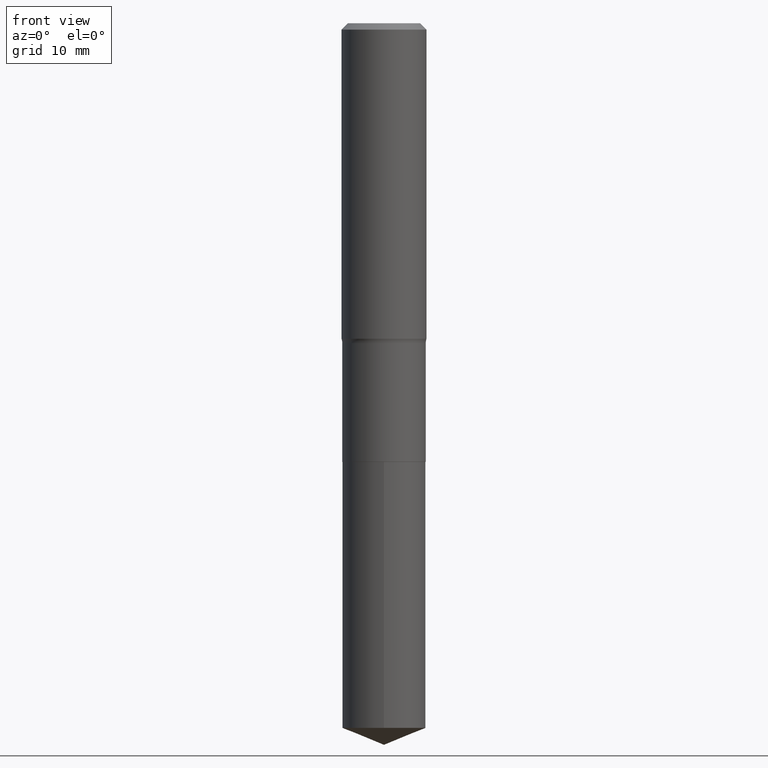
[diagram: clean part render]
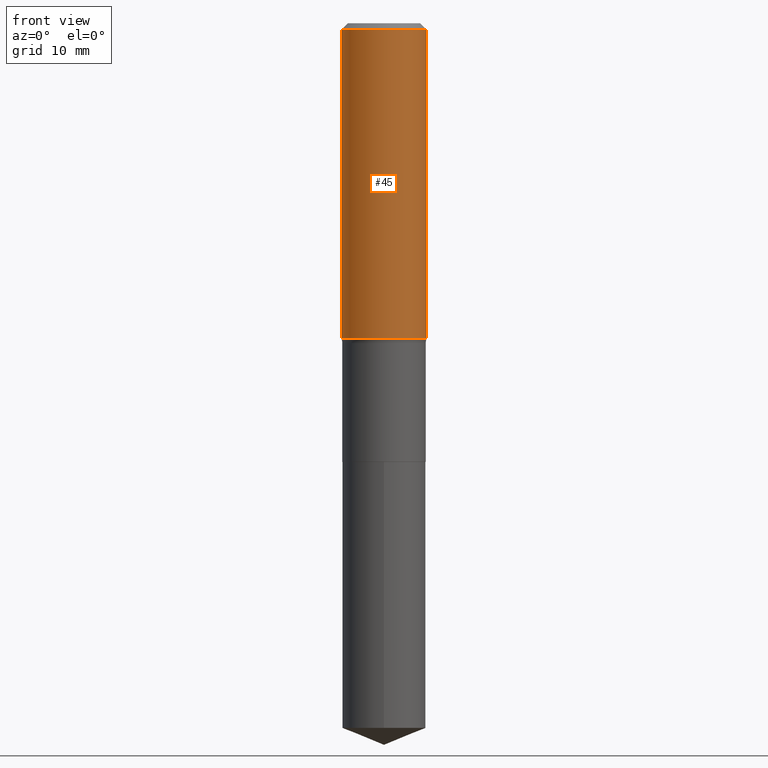
[diagram: same view with one face highlighted and labeled with its STEP entity id]
A machine part, front view. The second image highlights one B-rep face of the part: STEP entity #45.
In plain terms, the highlighted cylindrical surface (partial cylindrical patch) has radius 5.9995 mm, axis along (-0, 0, 1).
Its self-contained STEP definition (entity closure, byte-faithful):
#29 = EDGE_CURVE ( 'NONE', #132, #321, #423, .T. ) ;
#45 = ADVANCED_FACE ( 'NONE', ( #77 ), #184, .T. ) ;
#61 = ORIENTED_EDGE ( 'NONE', *, *, #457, .F. ) ;
#71 = EDGE_CURVE ( 'NONE', #489, #97, #255, .T. ) ;
#77 = FACE_OUTER_BOUND ( 'NONE', #241, .T. ) ;
#97 = VERTEX_POINT ( 'NONE', #383 ) ;
#132 = VERTEX_POINT ( 'NONE', #266 ) ;
#133 = CARTESIAN_POINT ( 'NONE',  ( 4.294841159874141345E-29, -6.131894925451270477E-15, -1.756244507806245192 ) ) ;
#140 = ORIENTED_EDGE ( 'NONE', *, *, #220, .T. ) ;
#148 = DIRECTION ( 'NONE',  ( -2.445468806185136597E-29, 3.491481338843145583E-15, 1.000000000000000000 ) ) ;
#179 = AXIS2_PLACEMENT_3D ( 'NONE', #182, #224, #418 ) ;
#182 = CARTESIAN_POINT ( 'NONE',  ( 0.000000000000000000, 0.000000000000000000, 0.000000000000000000 ) ) ;
#184 = CYLINDRICAL_SURFACE ( 'NONE', #179, 0.2362000000000001321 ) ;
#188 = CARTESIAN_POINT ( 'NONE',  ( 0.2362000000000002431, -7.781270709920767791E-15, -1.756244507806245192 ) ) ;
#200 = CARTESIAN_POINT ( 'NONE',  ( -0.2361999999999999933, -1.449497112777884254E-15, -0.03543000000000021826 ) ) ;
#220 = EDGE_CURVE ( 'NONE', #132, #489, #315, .T. ) ;
#224 = DIRECTION ( 'NONE',  ( -2.445468806185136597E-29, 3.491481338843145583E-15, 1.000000000000000000 ) ) ;
#241 = EDGE_LOOP ( 'NONE', ( #439, #140, #450, #61 ) ) ;
#246 = DIRECTION ( 'NONE',  ( -2.445468806185136597E-29, 3.491481338843145583E-15, 1.000000000000000000 ) ) ;
#251 = DIRECTION ( 'NONE',  ( 1.000000000000000000, -6.982962677686266711E-15, 0.000000000000000000 ) ) ;
#255 = LINE ( 'NONE', #464, #442 ) ;
#266 = CARTESIAN_POINT ( 'NONE',  ( -0.2362000000000002431, -4.453592983585912505E-15, -1.756244507806245192 ) ) ;
#299 = DIRECTION ( 'NONE',  ( -2.445468806185136877E-29, 3.491481338843145188E-15, 1.000000000000000000 ) ) ;
#301 = CARTESIAN_POINT ( 'NONE',  ( 8.664295980313993487E-31, -1.237031838352134079E-16, -0.03543000000000021826 ) ) ;
#315 = CIRCLE ( 'NONE', #385, 0.2362000000000002431 ) ;
#321 = VERTEX_POINT ( 'NONE', #200 ) ;
#358 = AXIS2_PLACEMENT_3D ( 'NONE', #301, #148, #251 ) ;
#376 = VECTOR ( 'NONE', #491, 39.37007874015748143 ) ;
#378 = CARTESIAN_POINT ( 'NONE',  ( -0.2362000000000001321, 1.678301941865357577E-15, -1.161852468318209457E-29 ) ) ;
#383 = CARTESIAN_POINT ( 'NONE',  ( 0.2361999999999999933, -1.773078968304709514E-15, -0.03543000000000021826 ) ) ;
#385 = AXIS2_PLACEMENT_3D ( 'NONE', #133, #246, #401 ) ;
#401 = DIRECTION ( 'NONE',  ( 1.000000000000000000, -6.982962677686265922E-15, 0.000000000000000000 ) ) ;
#418 = DIRECTION ( 'NONE',  ( 1.000000000000000000, -6.982962677686266711E-15, 4.876176775795936353E-29 ) ) ;
#423 = LINE ( 'NONE', #378, #376 ) ;
#438 = CIRCLE ( 'NONE', #358, 0.2361999999999999933 ) ;
#439 = ORIENTED_EDGE ( 'NONE', *, *, #29, .F. ) ;
#442 = VECTOR ( 'NONE', #299, 39.37007874015748143 ) ;
#450 = ORIENTED_EDGE ( 'NONE', *, *, #71, .T. ) ;
#457 = EDGE_CURVE ( 'NONE', #321, #97, #438, .T. ) ;
#464 = CARTESIAN_POINT ( 'NONE',  ( 0.2362000000000001321, -1.649375784469497117E-15, 1.151752954443000789E-29 ) ) ;
#489 = VERTEX_POINT ( 'NONE', #188 ) ;
#491 = DIRECTION ( 'NONE',  ( -2.445468806185136877E-29, 3.491481338843145188E-15, 1.000000000000000000 ) ) ;